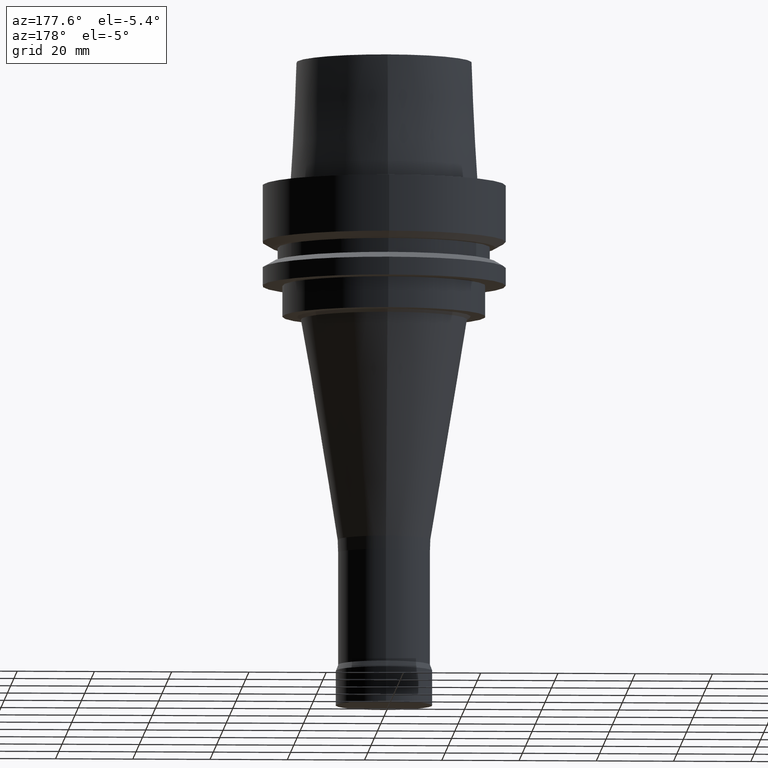
[diagram: clean part render]
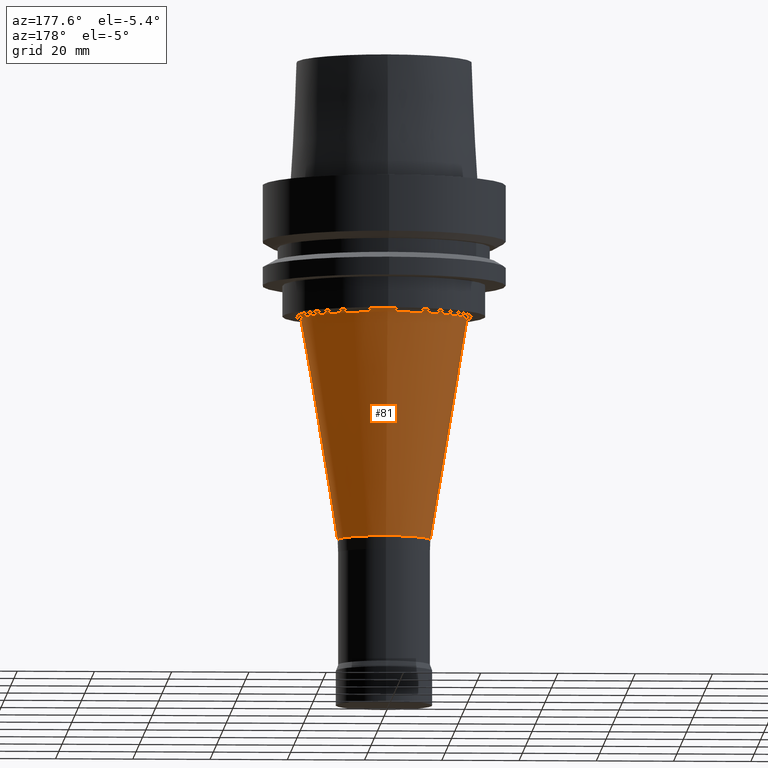
[diagram: same view with one face highlighted and labeled with its STEP entity id]
A machine part, auxiliary view. The second image highlights one B-rep face of the part: STEP entity #81.
In plain terms, the highlighted conical surface has half-angle 9.438 deg.
Its self-contained STEP definition (entity closure, byte-faithful):
#81=ADVANCED_FACE('',(#113,#114),#115,.T.);
#113=FACE_BOUND('',#171,.T.);
#114=FACE_BOUND('',#172,.T.);
#115=CONICAL_SURFACE('',#173,16.7745130511366,0.16473196943208);
#171=EDGE_LOOP('',(#241));
#172=EDGE_LOOP('',(#242));
#173=AXIS2_PLACEMENT_3D('',#243,#244,#245);
#241=ORIENTED_EDGE('',*,*,#314,.F.);
#242=ORIENTED_EDGE('',*,*,#315,.T.);
#243=CARTESIAN_POINT('',(3.88041675059911E-015,7.76083350119822E-015,-63.3720147441827));
#244=DIRECTION('',(-6.12323399573677E-017,-1.22464679914735E-016,1.0));
#245=DIRECTION('',(-1.23259516440783E-032,1.0,1.22464679914735E-016));
#314=EDGE_CURVE('',#337,#337,#338,.T.);
#315=EDGE_CURVE('',#339,#339,#340,.T.);
#337=VERTEX_POINT('',#375);
#338=CIRCLE('',#376,12.0149960676806);
#339=VERTEX_POINT('',#377);
#340=CIRCLE('',#378,21.5340300345926);
#375=CARTESIAN_POINT('',(5.63353960823633E-015,12.0149960676806,-92.0026837478139));
#376=AXIS2_PLACEMENT_3D('',#417,#418,#419);
#377=CARTESIAN_POINT('',(2.12729389296189E-015,21.5340300345926,-34.7413457405515));
#378=AXIS2_PLACEMENT_3D('',#420,#421,#422);
#417=CARTESIAN_POINT('',(5.63353960823633E-015,1.12670792164727E-014,-92.0026837478139));
#418=DIRECTION('',(6.12323399573677E-017,1.22464679914735E-016,-1.0));
#419=DIRECTION('',(-1.23259516440783E-032,1.0,1.22464679914735E-016));
#420=CARTESIAN_POINT('',(2.1272938929619E-015,4.25458778592379E-015,-34.7413457405515));
#421=DIRECTION('',(6.12323399573677E-017,1.22464679914735E-016,-1.0));
#422=DIRECTION('',(-1.23259516440783E-032,1.0,1.22464679914735E-016));